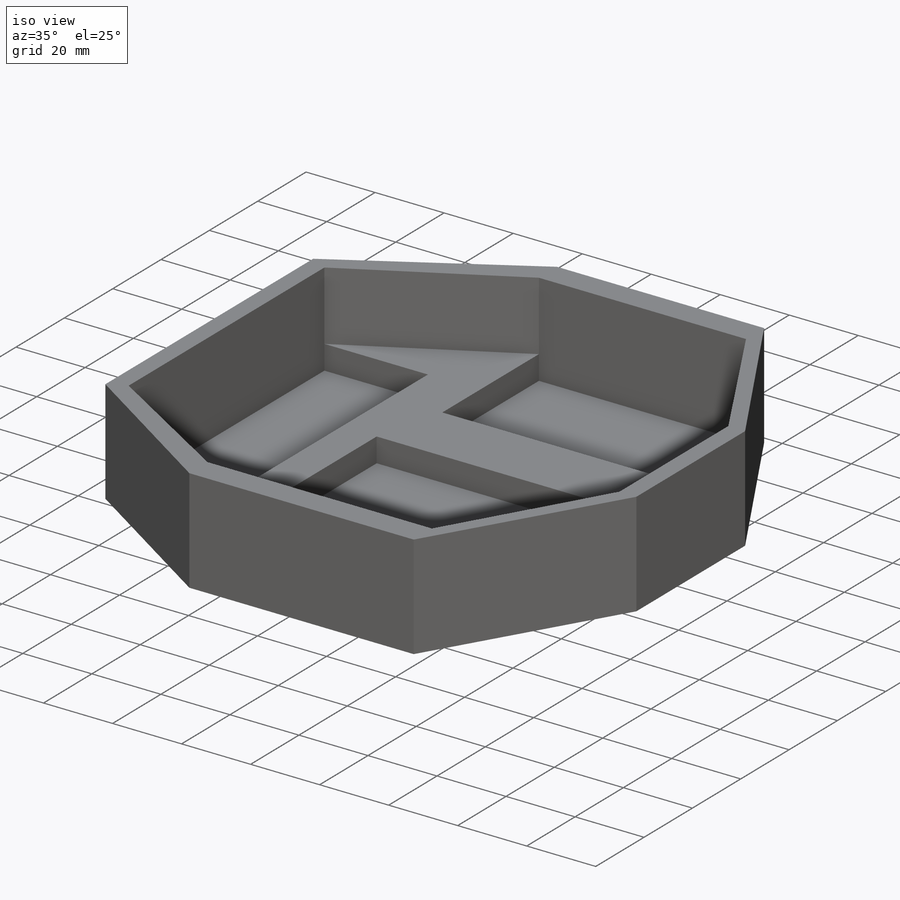
[diagram: iso view]
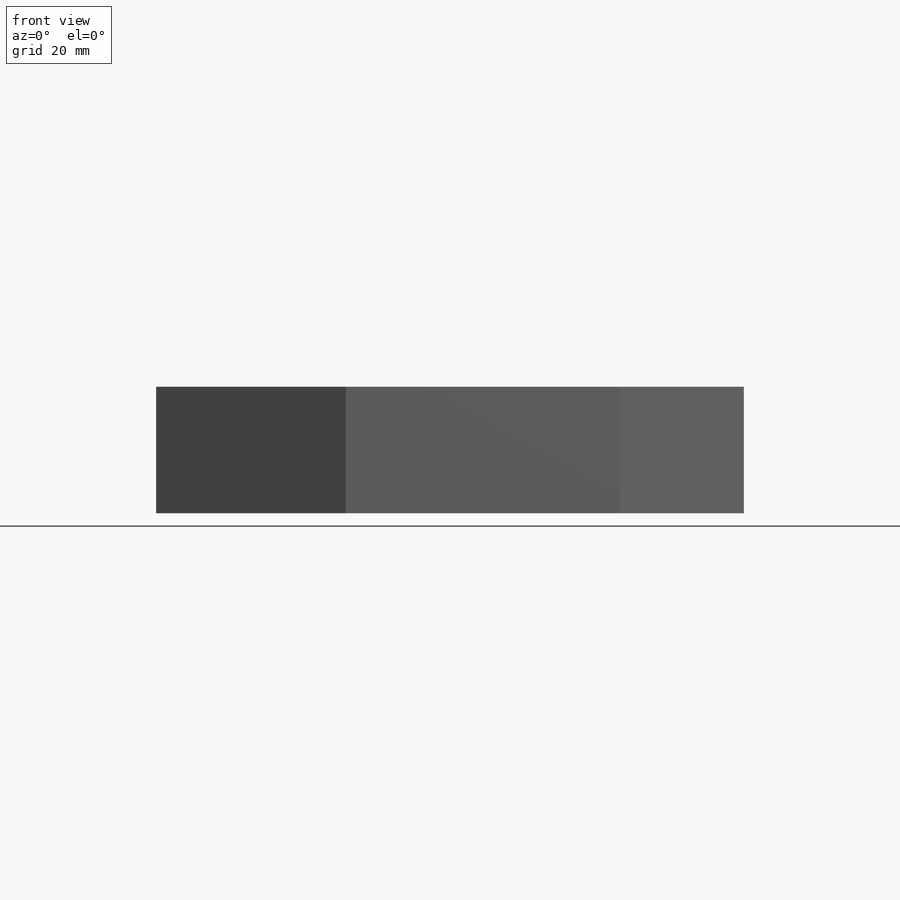
[diagram: front view]
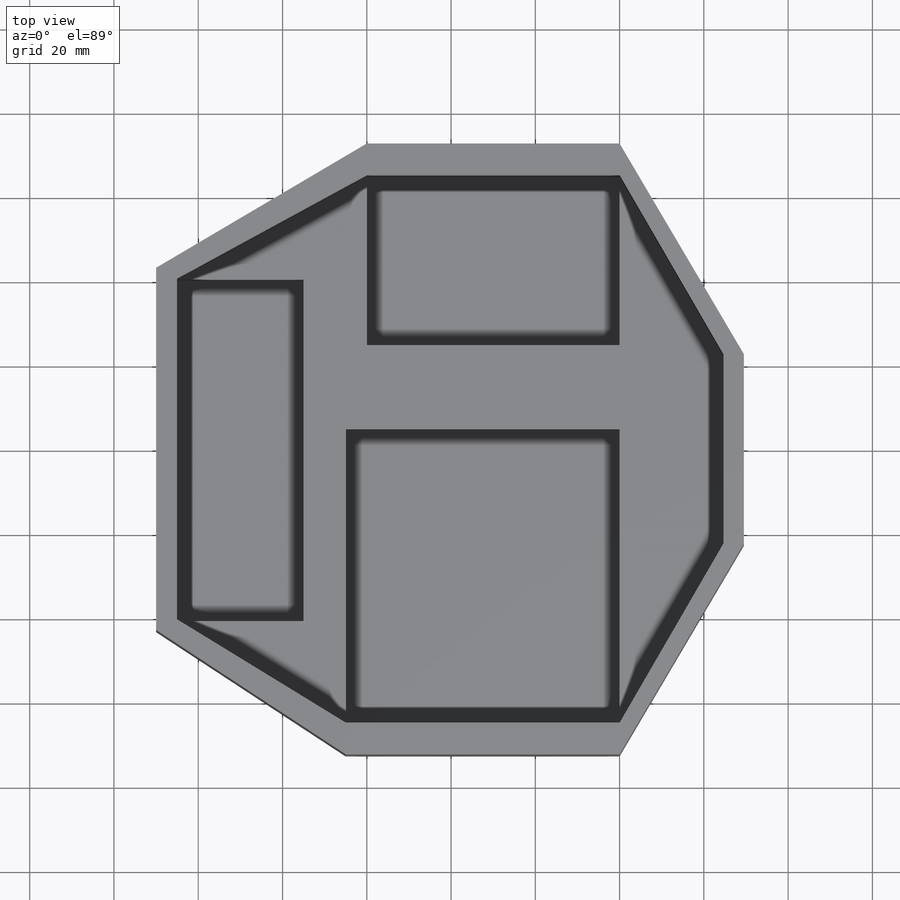
[diagram: top view]
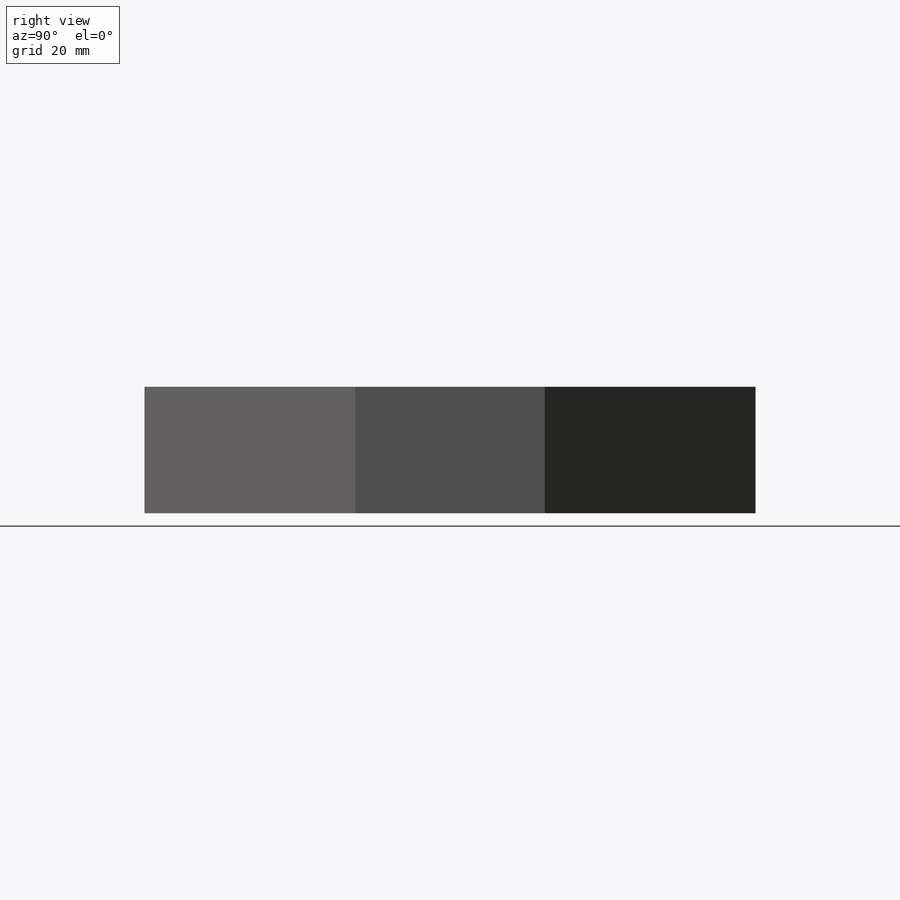
[diagram: right view]
SOLIDWORKS PART (.sldprt)
format: sldprt  version: not decoded by parser v0  size: 259,584 bytes
history: native  units: mm
features: sketch x4, extrude x2, cut_extrude x2, material x1 (+13 scaffold rows collapsed)
feature tree (22):
  scaffold x13  (default folders/planes/origin — collapsed)
  material  "Material <not specified>"
  sketch  "Sketch1"  dims[D1=170.0mm]
  extrude  "Boss-Extrude2"  Depth=10mm
  sketch  "Sketch3"  dims[D1=30.0mm D2=81.0mm D3=40.5mm D4=35.0mm D5=60.0mm D6=40.0mm D7=15.0mm D8=65.0mm D9=70.0mm D10=10.0mm D11=65.0mm D12=20.0mm]
  cut_extrude  "Cut-Extrude2"  Depth=7mm
  sketch  "Sketch5"  dims[D1=5.0mm D2=2.5mm D3=2.5mm D4=7.5mm D5=0.0mm D6=7.5mm D7=0.0mm D8=65.0mm D9=0.0mm D10=29.5mm D11=50.0mm D12=50.0mm]
  cut_extrude  "Cut-Extrude4"  Depth=10mm
  sketch  "Sketch6"  dims[D1=0.0mm D2=0.0mm]
  extrude  "Boss-Extrude3"  Depth=20mm
decode coverage: 8 of 8 modeling features carry decoded parameters
note: suppression state not decoded; provenance and decode notes live in map.json
